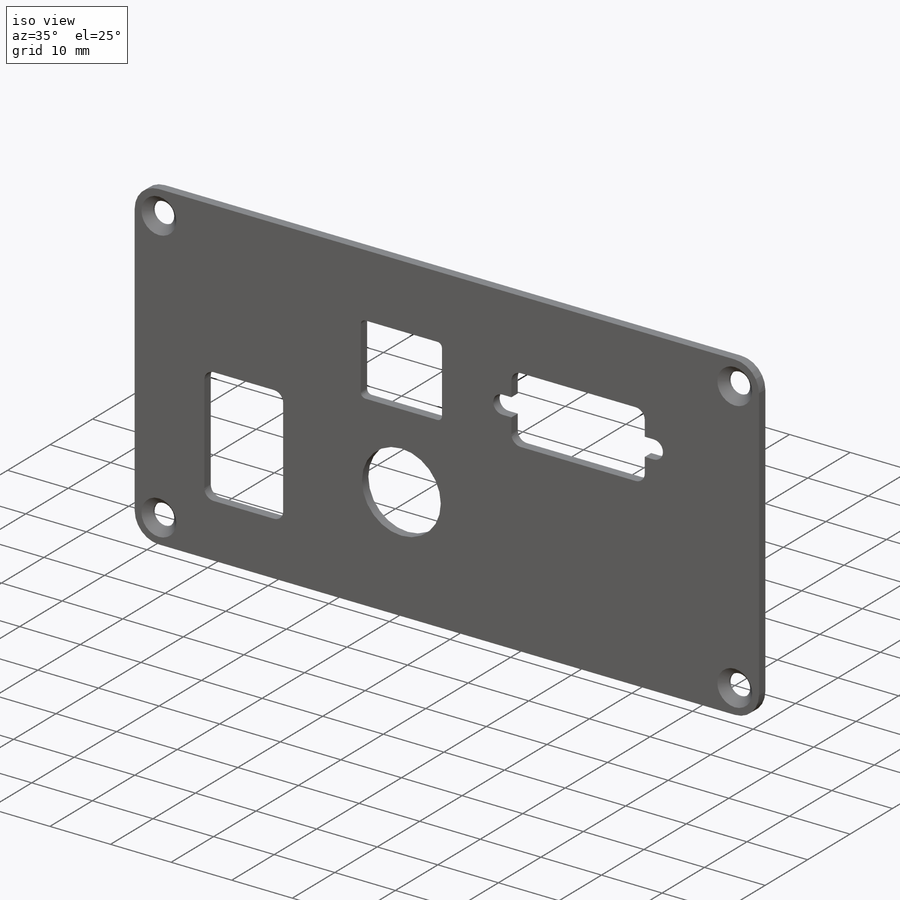
[diagram: iso view]
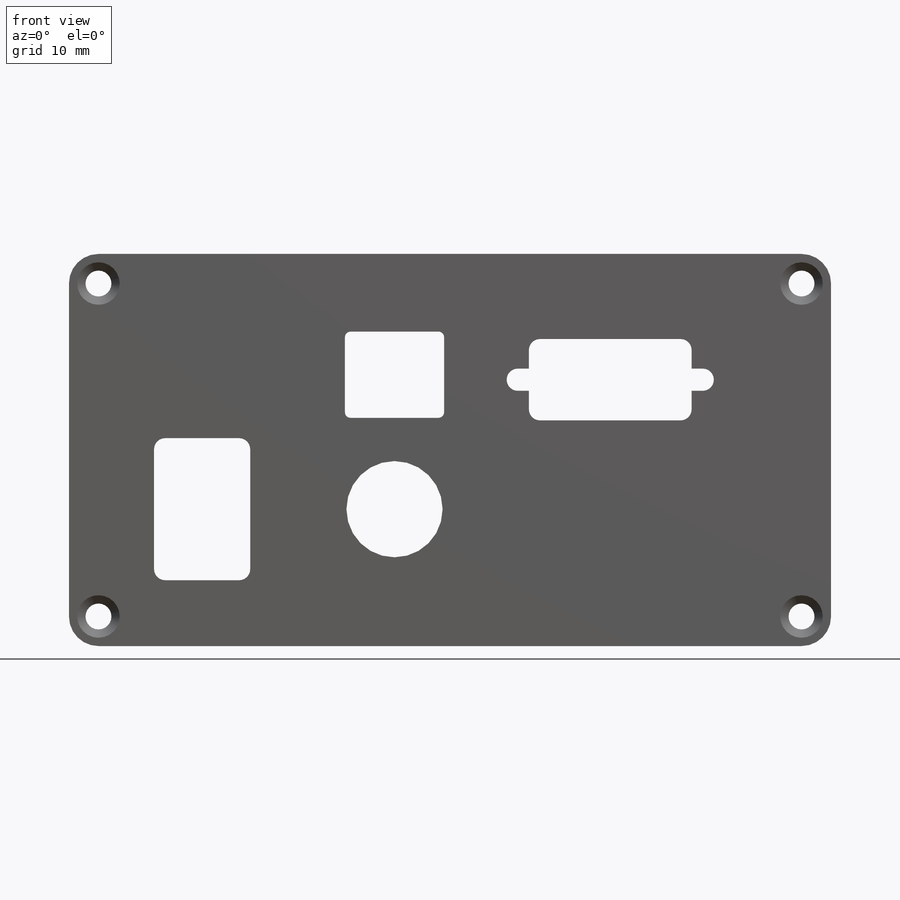
[diagram: front view]
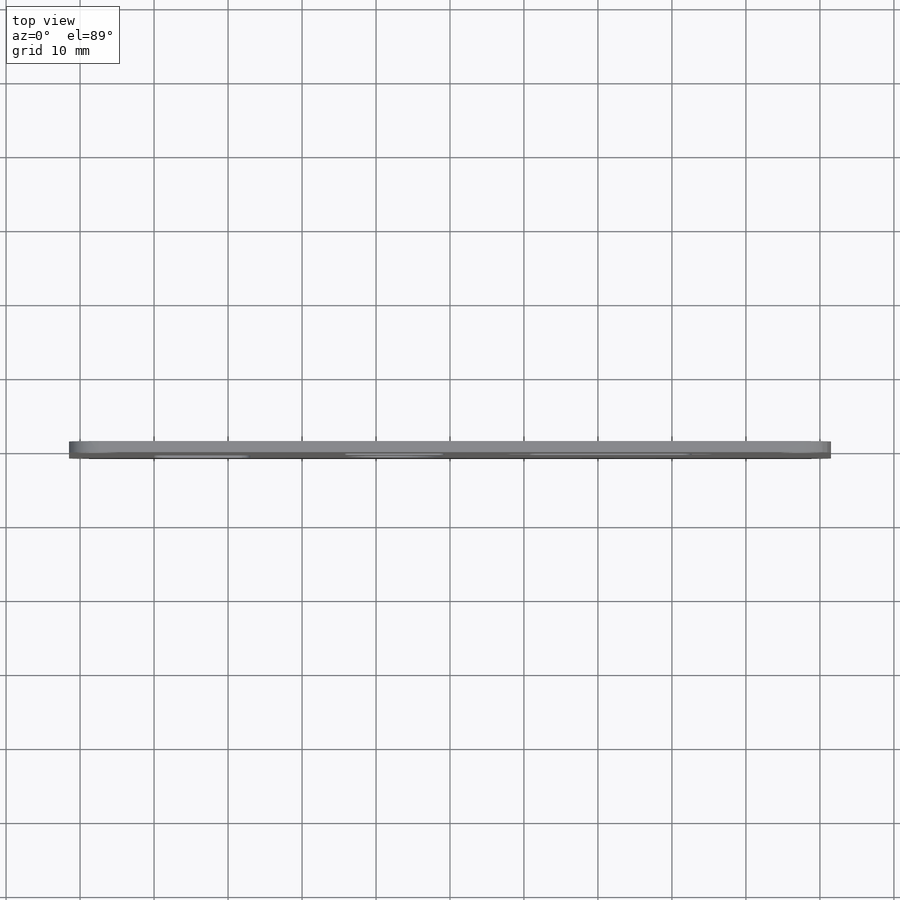
[diagram: top view]
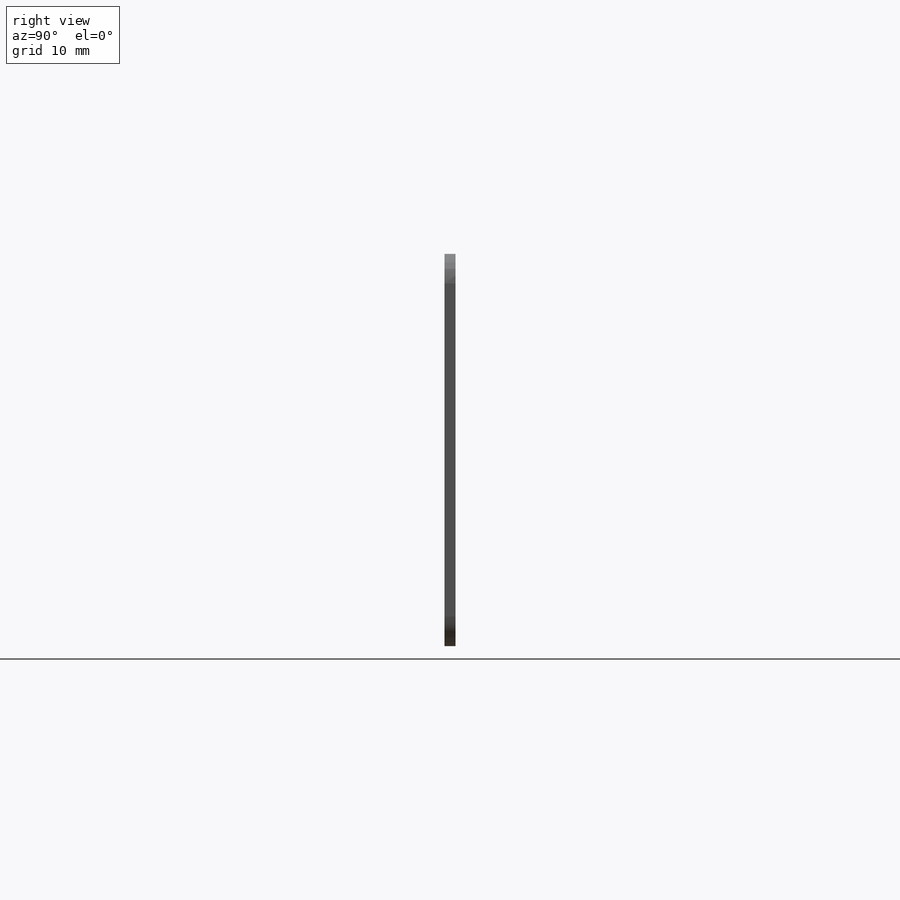
[diagram: right view]
SOLIDWORKS PART (.sldprt)
format: sldprt  version: not decoded by parser v0  size: 287,232 bytes
history: native  units: mm
features: plane x4, sketch x4, material x1, extrude x1, hole x1, fillet x1, cut_extrude x1 (+8 scaffold rows collapsed)
feature tree (21):
  scaffold x8  (default folders/planes/origin — collapsed)
  material  "Material <not specified>"
  plane  "Plan de face"
  plane  "Plan de dessus"
  plane  "Plan de droite"
  plane  "Plan1"
  sketch  "Esquisse1"
  extrude  "Boss.-Extru.1"  Depth=1.5mm
  hole  "Fraisage pour vis à tête fraisée M31"  Diameter=3.5mm Depth=1.5mm
  sketch  "Esquisse3"
  sketch  "Esquisse2"  dims[hole-wizard template sketch: 54 standard entries collapsed; hole parameters kept: c17.Diamètre du perçage jusqu'au prochain=3.5mm c17.Profondeur du perçage jusqu'au prochain=1.5mm c17.Diamètre du fraisage entrant=5.75mm c17.D4=~3.666174mm c17.Angle du fraisage entrant=90.0deg]
  fillet  "Congé1"  Radius=3.99mm
  sketch  "Esquisse5"  dims[c1.D9=~1.881041mm c1.D10=1.5mm c1.D11=13.0mm c1.D14=1.5mm c1.D19=0.75mm c1.D1=30.0mm c1.D2=0.0mm c1.D3=19.2mm c1.D4=13.0mm c1.D5=13.44mm c1.D6=22.0mm c1.D7=11.0mm c1.D8=10.0mm c2.D9=25.0mm c2.D8=17.0mm c2.D11=15.0mm c2.D2=8.0mm c2.D12=5.0mm c2.D13=35.0mm c2.D5=25.6mm c3.D12=26.0mm c3.D13=18.0mm c3.D15=13.4mm c3.D16=11.65mm c3.D17=29.16mm c3.D18=6.5mm]
  cut_extrude  "Enlèv. mat.-Extru.1"  [1 undecoded]
decode coverage: 5 of 8 modeling features carry decoded parameters
note: ~ marks probable driven/reference dimensions
note: 1 parameter value undecoded
note: suppression state not decoded; provenance and decode notes live in map.json
